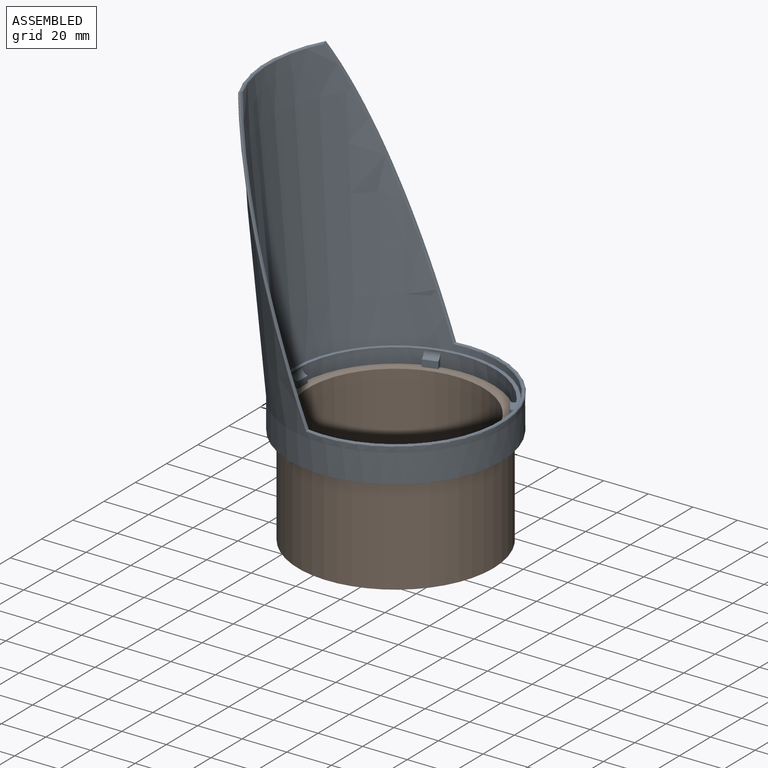
[diagram: assembled view]
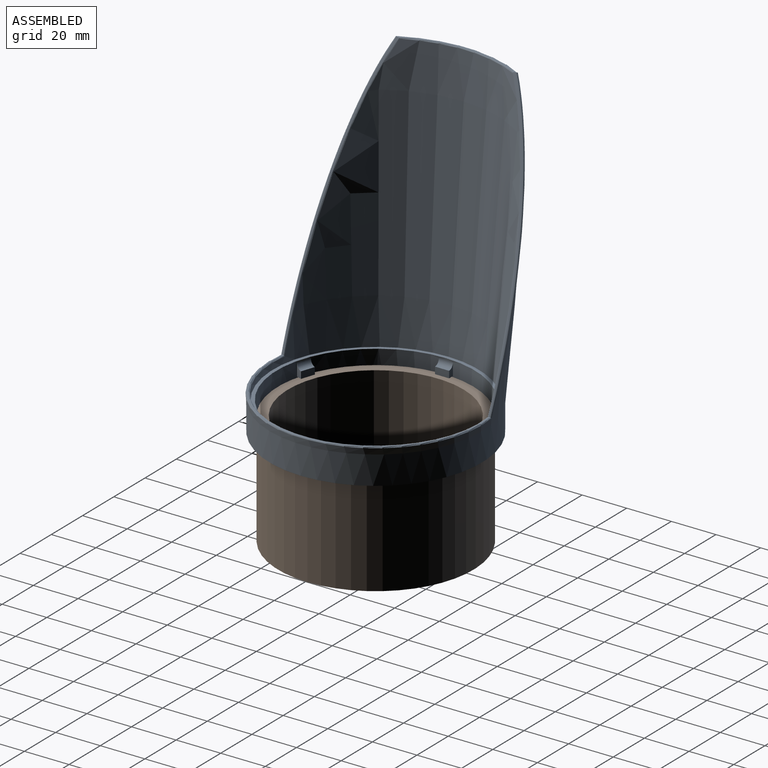
[diagram: assembled view, second angle]
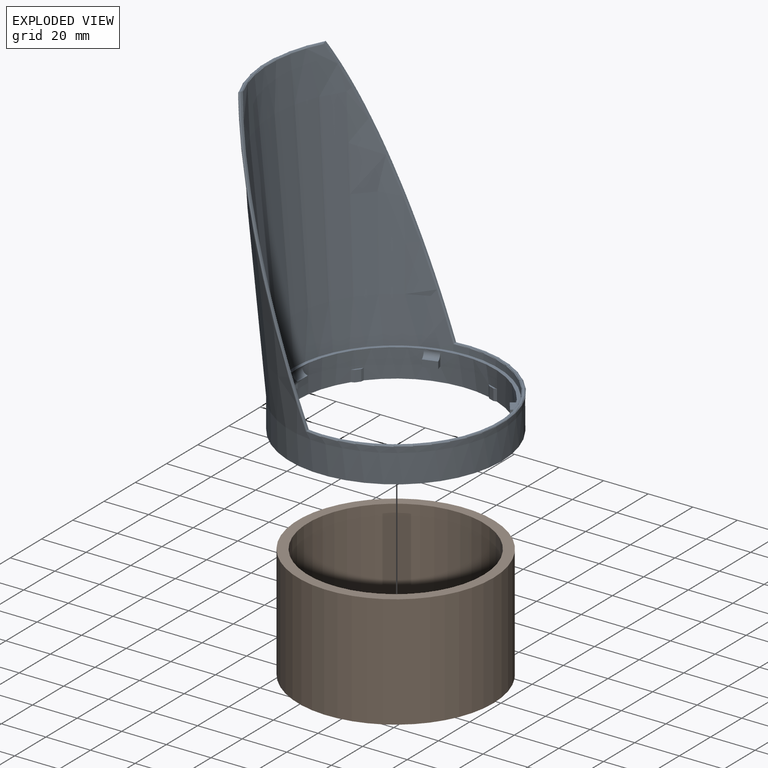
[diagram: exploded view]
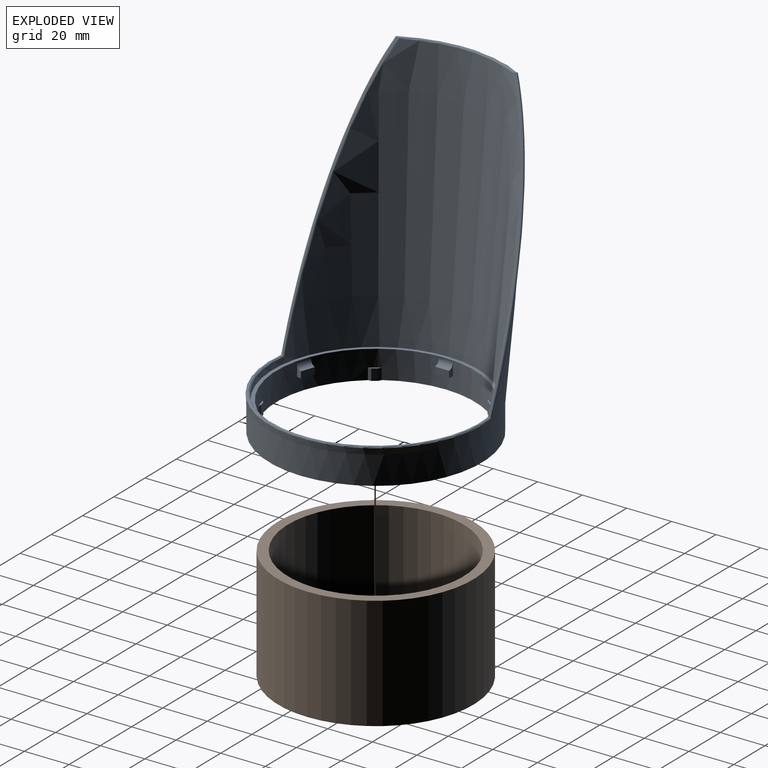
[diagram: exploded view, second angle]
ASSEMBLY  parts=2 mates=2
PART A: 63 faces, bbox 121.7x116.9x141.6 mm
  f0: plane 95.25x95.25mm, normal (0,0,-1), area 932.8mm2, adj f1,f6,f7,f8,f9,f15,f16,f17
  f1: cylinder r=47.62mm len=95.25mm, axis (0,0,-1), area 3800.3mm2, adj f0,f2
  f2: cone r=47.62mm half-angle=5.1deg, axis (0,0,1), area 12880.1mm2, adj f1,f55,f56,f57,f58
  f3: plane 54.6x7.06mm, normal (0,0,1), area 32.9mm2, adj f48,f50,f55,f56,f57,f60
  f4: cone r=56.81mm half-angle=5.1deg, axis (0,0,1), area 12406.5mm2, adj f5,f59,f60,f61,f62
  f5: plane 92.04x92.04mm, normal (0,0,1), area 445.8mm2, adj f4,f6
  f6: cylinder r=44.45mm len=88.9mm, axis (0,0,-1), area 3256.4mm2, adj f0,f5,f8,f9,f10,f11,f12,f14
  f7: plane 5.08x2.42mm, normal (-0.31,0.95,0), area 12.9mm2, adj f0,f8,f9,f10
  f8: plane 5.08x1.42mm, normal (0.18,0.98,0), area 7.3mm2, adj f0,f6,f7,f10
  f9: plane 5.08x1.05mm, normal (-0.73,0.69,0), area 7.3mm2, adj f0,f6,f7,f10
  f10: plane 4.83x1.83mm, normal (0,0,1), area 2.9mm2, adj f6,f7,f8,f9
  f11: plane 5.67x2.39mm, normal (0.95,0.31,0), area 8.8mm2, adj f6,f13,f14,f54
  f12: plane 5.67x2.39mm, normal (-0.95,-0.31,0), area 8.8mm2, adj f6,f13,f14,f54
  f13: plane 6.1x3.11mm, normal (0.31,-0.95,0), area 19.4mm2, adj f11,f12,f14,f54
  f14: plane 6.79x4.27mm, normal (0,0,-1), area 15.9mm2, adj f6,f11,f12,f13
  f15: plane 5.08x2.54mm, normal (-1,0,0), area 12.9mm2, adj f0,f16,f17,f18
  f16: plane 5.08x1.27mm, normal (-0.88,0.48,0), area 7.3mm2, adj f0,f6,f15,f18
  f17: plane 5.08x1.27mm, normal (-0.88,-0.48,0), area 7.3mm2, adj f0,f6,f15,f18
  f18: plane 5.08x0.76mm, normal (0,0,1), area 2.9mm2, adj f6,f15,f16,f17
  f19: plane 5.67x2.51mm, normal (0,1,0), area 8.8mm2, adj f6,f21,f22,f53
  f20: plane 5.67x2.51mm, normal (0,-1,0), area 8.8mm2, adj f6,f21,f22,f53
  f21: plane 6.41x3.11mm, normal (1,0,0), area 19.4mm2, adj f19,f20,f22,f53
  f22: plane 6.35x2.54mm, normal (0,0,-1), area 15.9mm2, adj f6,f19,f20,f21
  f23: plane 5.08x2.42mm, normal (-0.31,-0.95,0), area 12.9mm2, adj f0,f24,f25,f26
  f24: plane 5.08x1.05mm, normal (-0.73,-0.69,0), area 7.3mm2, adj f0,f6,f23,f26
  f25: plane 5.08x1.42mm, normal (0.18,-0.98,0), area 7.3mm2, adj f0,f6,f23,f26
  f26: plane 4.83x1.83mm, normal (0,0,1), area 2.9mm2, adj f6,f23,f24,f25
  f27: plane 5.67x2.39mm, normal (-0.95,0.31,0), area 8.8mm2, adj f6,f29,f30,f52
  f28: plane 5.67x2.39mm, normal (0.95,-0.31,0), area 8.8mm2, adj f6,f29,f30,f52
  f29: plane 6.1x3.11mm, normal (0.31,0.95,0), area 19.4mm2, adj f27,f28,f30,f52
  f30: plane 6.79x4.27mm, normal (0,0,-1), area 15.9mm2, adj f6,f27,f28,f29
  f31: plane 5.08x2.06mm, normal (0.81,-0.59,0), area 12.9mm2, adj f0,f32,f33,f34
  f32: plane 5.08x1.3mm, normal (0.43,-0.9,0), area 7.3mm2, adj f0,f6,f31,f34
  f33: plane 5.08x1.43mm, normal (0.99,-0.13,0), area 7.3mm2, adj f0,f6,f31,f34
  f34: plane 4.11x2.99mm, normal (0,0,1), area 2.9mm2, adj f6,f31,f32,f33
  f35: plane 5.67x2.04mm, normal (-0.59,-0.81,0), area 8.8mm2, adj f6,f37,f38,f51
  f36: plane 5.67x2.04mm, normal (0.59,0.81,0), area 8.8mm2, adj f6,f37,f38,f51
  f37: plane 5.2x3.79mm, normal (-0.81,0.59,0), area 19.4mm2, adj f35,f36,f38,f51
  f38: plane 6.56x5.7mm, normal (0,0,-1), area 15.9mm2, adj f6,f35,f36,f37
  f39: plane 5.08x2.06mm, normal (0.81,0.59,0), area 12.9mm2, adj f0,f40,f41,f42
  f40: plane 5.08x1.43mm, normal (0.99,0.13,0), area 7.3mm2, adj f0,f6,f39,f42
  f41: plane 5.08x1.3mm, normal (0.43,0.9,0), area 7.3mm2, adj f0,f6,f39,f42
  f42: plane 4.11x2.99mm, normal (0,0,1), area 2.9mm2, adj f6,f39,f40,f41
  f43: plane 3.05x1.96mm, normal (0.59,-0.81,0), area 7.4mm2, adj f6,f45,f46,f47
  f44: plane 3.05x1.96mm, normal (-0.59,0.81,0), area 7.4mm2, adj f6,f45,f46,f47
  f45: plane 5.14x3.73mm, normal (-0.81,-0.59,0), area 19.4mm2, adj f43,f44,f46,f47
  f46: plane 6.56x5.7mm, normal (0,0,1), area 15.9mm2, adj f6,f43,f44,f45
  f47: plane 6.56x5.7mm, normal (0,0,-1), area 15.9mm2, adj f6,f43,f44,f45
  f48: plane 117.59x44.56mm, normal (0.94,0,0.35), area 96.3mm2, adj f3,f49,f57,f60,f61,f62
  f49: plane 94.71x53.71mm, normal (0,0,1), area 94.2mm2, adj f48,f50,f56,f57,f58,f61
  f50: plane 117.59x44.56mm, normal (0.94,0,0.35), area 96.3mm2, adj f3,f49,f56,f59,f60,f61
  f51: torus R=41.91mm, axis (0,0,1), area 25.2mm2, adj f6,f35,f36,f37
  f52: torus R=41.91mm, axis (0,0,1), area 25.2mm2, adj f6,f27,f28,f29
  f53: torus R=41.91mm, axis (0,0,1), area 25.2mm2, adj f6,f19,f20,f21
  f54: torus R=41.91mm, axis (0,0,1), area 25.2mm2, adj f6,f11,f12,f13
  f55: torus R=57.86mm, axis (0,0,1), area 48.1mm2, adj f2,f3,f56,f57
  f56: bspline ~135.87x51.9mm, area 140.8mm2, adj f2,f3,f49,f50,f55,f58
  f57: bspline ~135.87x51.9mm, area 140.8mm2, adj f2,f3,f48,f49,f55,f58
  f58: torus R=47.35mm, axis (0,0,-1), area 137.4mm2, adj f2,f49,f56,f57
  f59: bspline ~117.72x44.52mm, area 63.5mm2, adj f4,f50,f60,f61
  f60: torus R=57.28mm, axis (0,0,1), area 40.5mm2, adj f3,f4,f48,f50,f59,f62
  f61: torus R=46.77mm, axis (0,0,-1), area 119.6mm2, adj f4,f48,f49,f50,f59,f62
  f62: bspline ~117.72x44.52mm, area 63.5mm2, adj f4,f48,f60,f61
PART B: 4 faces, bbox 87.6x87.6x50.8 mm
  f0: cylinder r=39.37mm len=78.74mm, axis (0,0,1), area 12566.3mm2, adj f2,f3
  f1: cylinder r=43.81mm len=87.63mm, axis (0,0,1), area 13985.1mm2, adj f2,f3
  f2: plane 87.63x87.63mm, normal (0,0,-1), area 1161.6mm2, adj f0,f1
  f3: plane 87.63x87.63mm, normal (0,0,1), area 1161.6mm2, adj f0,f1
PLACE A rot(axis=(0,0,-1),0.5deg) t=(-21.77,-7.69,-47.65)mm
PLACE B t=(-21.77,-7.69,-47.65)mm fixed
MATE cylindrical A.f1 <-> B.f0  axis (0,0,1) through (-21.77,-7.69,-41.3)mm
MATE planar B.f1 <-> A.f22  axis (0,0,1) through (-21.77,-7.69,-47.65)mm
